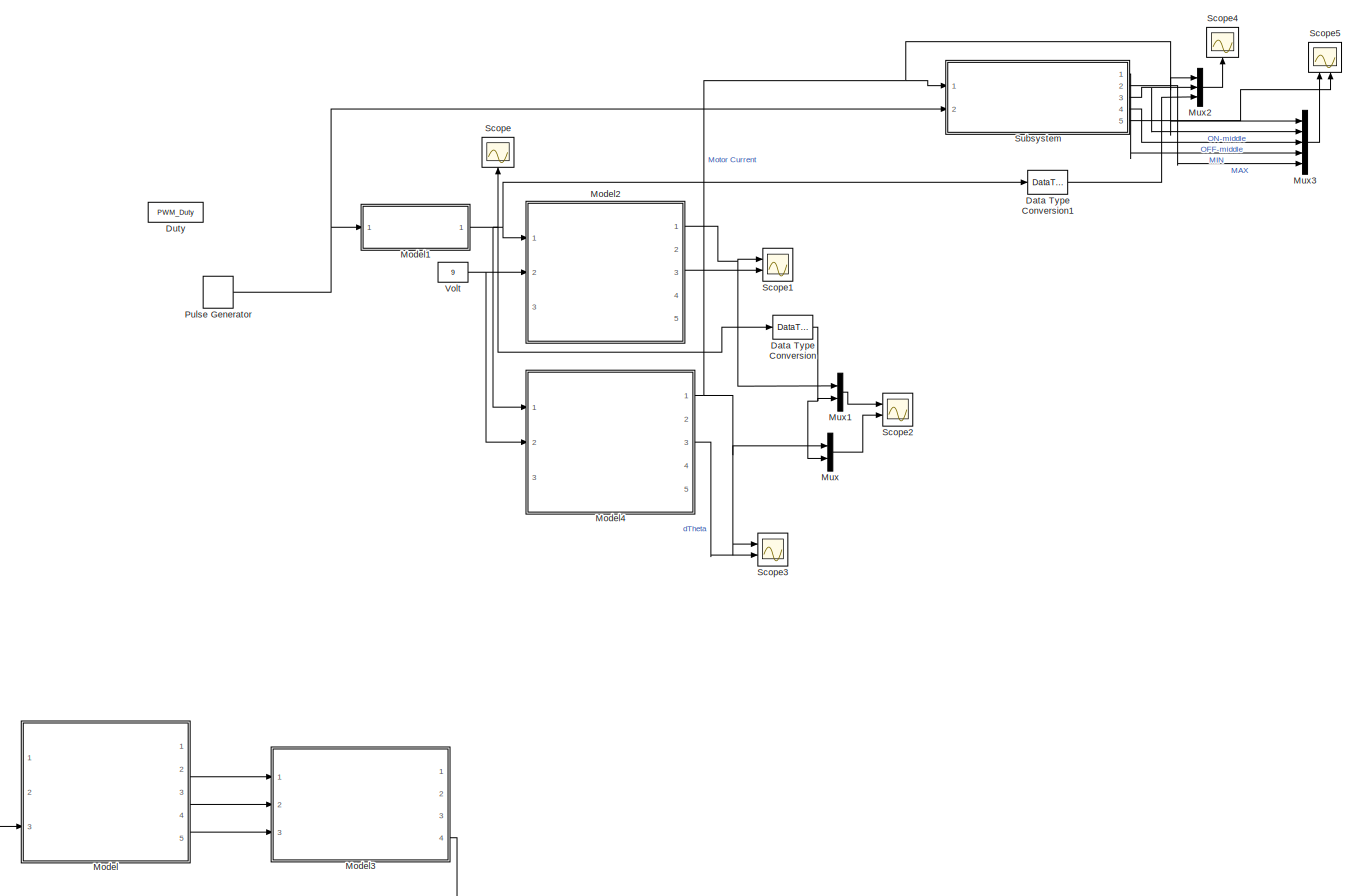
[diagram: root canvas - part 1/1, most of the canvas]
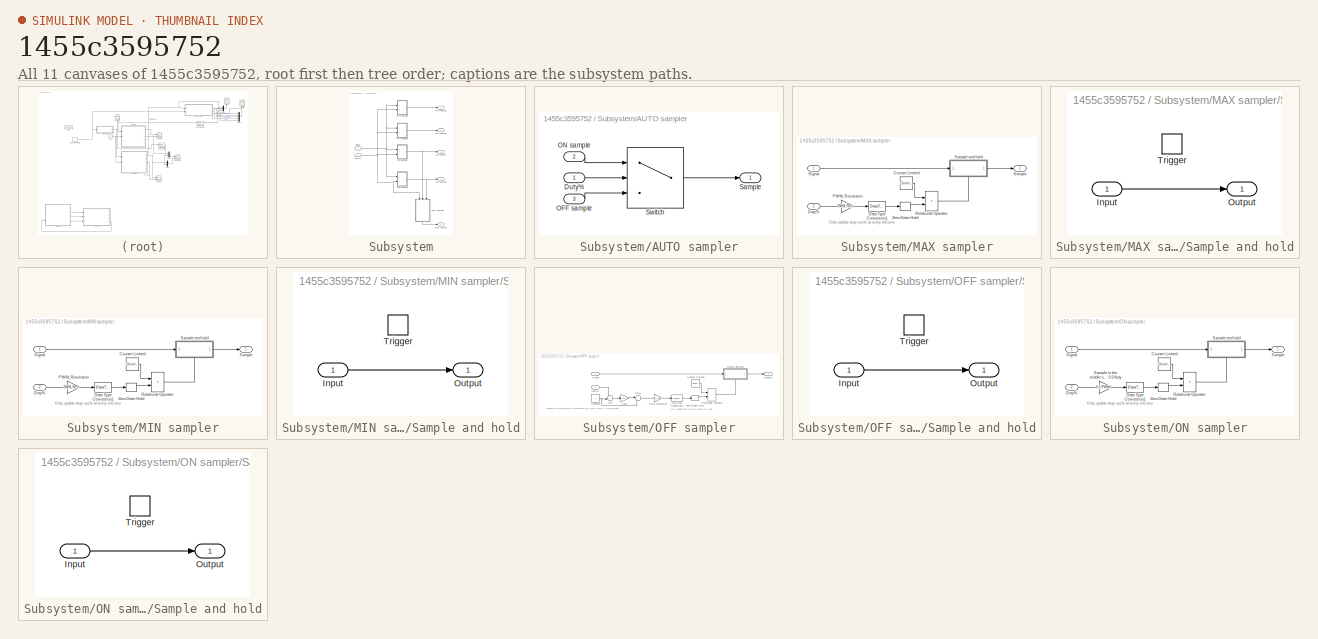
[diagram: thumbnail index - all 11 canvases of the model, root first then tree order]
MODEL slx_1455c3595752
KIND model
CONFIG AbsTol = auto
CONFIG EnableMultiTasking = off
CONFIG FixedStep = auto
CONFIG InitFcn = Parameters_Model\nParameters_Simulation\nParameters_Controller
CONFIG MaxStep = 1/(PWM_Resolution*PWM_Frequency)
CONFIG MinStep = auto
CONFIG PreLoadFcn = modelDir = fileparts(get_param(bdroot, 'FileName'));\ndisp(modelDir);\naddpath(fullfile(modelDir,'../Parameters'));\naddpath(fullfile(modelDir,'subsystems'));\n\nParameters_Model\nParameters_Simulation\nParameters_Controller
CONFIG RelTol = 1e-3
CONFIG SampleTimeConstraint = Unconstrained
CONFIG Solver = VariableStepAuto
CONFIG SolverName = VariableStepAuto
CONFIG StartTime = 0.0
CONFIG StopTime = 1
BLOCK [DataTypeConversion] Data Type Conversion
  RndMeth = Round
  SaturateOnIntegerOverflow = off
BLOCK [DataTypeConversion] Data Type Conversion1
  RndMeth = Round
  SaturateOnIntegerOverflow = off
BLOCK [Constant] Duty
  Value = PWM_Duty
BLOCK [ModelReference] Model
  Commented = on
  ModelNameDialog = DC_Motor_BrakeMode
  ModelReferenceVersion = 1.43
  Ports = [3, 5]
BLOCK [ModelReference] Model1
  ModelNameDialog = PWM
  ModelReferenceVersion = 1.22
  Ports = [1, 1]
BLOCK [ModelReference] Model2
  ModelNameDialog = DC_Motor_CoastMode
  ModelReferenceVersion = 1.46
  Ports = [3, 5]
BLOCK [ModelReference] Model3
  Commented = on
  ModelNameDialog = Gearbox
  ModelReferenceVersion = 1.9
  Ports = [3, 4]
BLOCK [ModelReference] Model4
  ModelNameDialog = DC_Motor_BrakeMode
  ModelReferenceVersion = 1.43
  Ports = [3, 5]
BLOCK [Mux] Mux
  DisplayOption = bar
  Inputs = 2
  Ports = [2, 1]
BLOCK [Mux] Mux1
  DisplayOption = bar
  Inputs = 2
  Ports = [2, 1]
BLOCK [Mux] Mux2
  DisplayOption = bar
  Inputs = 3
  Ports = [3, 1]
BLOCK [Mux] Mux3
  DisplayOption = bar
  Inputs = 5
  Ports = [5, 1]
BLOCK [DiscretePulseGenerator] Pulse Generator
  Amplitude = PWM_Duty
  Period = 1
  Ports = [0, 1]
  PulseType = Time based
  PulseWidth = 20
BLOCK [Scope] Scope
  Floating = off
  NumInputPorts = 1
  Ports = [1]
  ScopeSpecificationString = Simulink.scopes.TimeScopeBlockCfg('CurrentConfiguration', extmgr.ConfigurationSet(extmgr.Configuration('Core','General UI',true),extmgr.Configuration('Core','Source UI',true),extmgr.Configuration('Sources','WiredSimulink',true),extmgr.Configuration('Visuals','Time Domain',true,'SerializedDisplays',{struct('MinYLimReal','-0.125','MaxYLimReal','1.125','YLabelReal','','MinYLimMag','0.00000','MaxYLimM...<+1416ch>
BLOCK [Scope] Scope1
  Floating = off
  NumInputPorts = 2
  Ports = [2]
  ScopeSpecificationString = Simulink.scopes.TimeScopeBlockCfg('CurrentConfiguration', extmgr.ConfigurationSet(extmgr.Configuration('Core','General UI',true),extmgr.Configuration('Core','Source UI',true),extmgr.Configuration('Sources','WiredSimulink',true,'DataLoggingVariableName','ScopeData1'),extmgr.Configuration('Visuals','Time Domain',true,'SerializedDisplays',{struct('MinYLimReal','-0.118','MaxYLimReal','1.06196','YLabel...<+2147ch>
BLOCK [Scope] Scope2
  Floating = off
  NumInputPorts = 2
  Ports = [2]
  ScopeSpecificationString = Simulink.scopes.TimeScopeBlockCfg('CurrentConfiguration', extmgr.ConfigurationSet(extmgr.Configuration('Core','General UI',true),extmgr.Configuration('Core','Source UI',true),extmgr.Configuration('Sources','WiredSimulink',true,'DataLoggingVariableName','ScopeData1'),extmgr.Configuration('Visuals','Time Domain',true,'SerializedDisplays',{struct('MinYLimReal','-0.125','MaxYLimReal','1.125','YLabelRe...<+2525ch>
BLOCK [Scope] Scope3
  Floating = off
  NumInputPorts = 2
  Ports = [2]
  ScopeSpecificationString = Simulink.scopes.TimeScopeBlockCfg('CurrentConfiguration', extmgr.ConfigurationSet(extmgr.Configuration('Core','General UI',true),extmgr.Configuration('Core','Source UI',true),extmgr.Configuration('Sources','WiredSimulink',true,'DataLoggingVariableName','ScopeData2'),extmgr.Configuration('Visuals','Time Domain',true,'SerializedDisplays',{struct('MinYLimReal','-1.92365','MaxYLimReal','2.36002','YLab...<+2149ch>
BLOCK [Scope] Scope4
  Floating = off
  NumInputPorts = 1
  Ports = [1]
  ScopeSpecificationString = Simulink.scopes.TimeScopeBlockCfg('CurrentConfiguration', extmgr.ConfigurationSet(extmgr.Configuration('Core','General UI',true),extmgr.Configuration('Core','Source UI',true),extmgr.Configuration('Sources','WiredSimulink',true,'DataLoggingVariableName','ScopeData1'),extmgr.Configuration('Visuals','Time Domain',true,'SerializedDisplays',{struct('MinYLimReal','-0.21012','MaxYLimReal','1.89105','YLab...<+1509ch>
BLOCK [Scope] Scope5
  Floating = off
  NumInputPorts = 2
  Ports = [2]
  ScopeSpecificationString = Simulink.scopes.TimeScopeBlockCfg('CurrentConfiguration', extmgr.ConfigurationSet(extmgr.Configuration('Core','General UI',true),extmgr.Configuration('Core','Source UI',true),extmgr.Configuration('Sources','WiredSimulink',true,'DataLoggingVariableName','ScopeData2'),extmgr.Configuration('Visuals','Time Domain',true,'SerializedDisplays',{struct('MinYLimReal','-0.24143','MaxYLimReal','2.17285','YLab...<+2101ch>
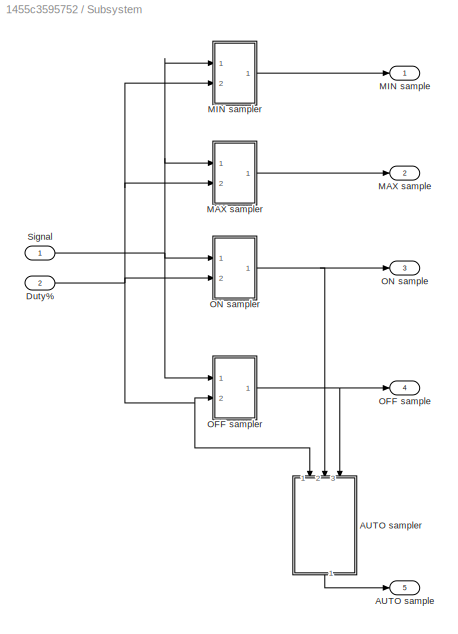
BLOCK [SubSystem] Subsystem
  Ports = [2, 5]
  RequestExecContextInheritance = off
BLOCK [Outport] Subsystem/AUTO sample
  IconDisplay = Port number
  Port = 5
  VectorParamsAs1DForOutWhenUnconnected = off
BLOCK [SubSystem] Subsystem/AUTO sampler
  Ports = [3, 1]
  RequestExecContextInheritance = off
BLOCK [Inport] Subsystem/AUTO sampler/Duty%
  IconDisplay = Port number
  OutDataTypeStr = double
BLOCK [Inport] Subsystem/AUTO sampler/OFF sample
  IconDisplay = Port number
  Port = 3
BLOCK [Inport] Subsystem/AUTO sampler/ON sample
  IconDisplay = Port number
  Port = 2
BLOCK [Outport] Subsystem/AUTO sampler/Sample
  IconDisplay = Port number
  VectorParamsAs1DForOutWhenUnconnected = off
BLOCK [Switch] Subsystem/AUTO sampler/Switch
  InputSameDT = off
  SaturateOnIntegerOverflow = off
  Threshold = 0.5
BLOCK [Inport] Subsystem/Duty%
  IconDisplay = Port number
  OutDataTypeStr = double
  Port = 2
BLOCK [Outport] Subsystem/MAX sample
  IconDisplay = Port number
  Port = 2
  VectorParamsAs1DForOutWhenUnconnected = off
BLOCK [SubSystem] Subsystem/MAX sampler
  Ports = [2, 1]
  RequestExecContextInheritance = off
BLOCK [Reference] Subsystem/MAX sampler/Counter Limited  REF=simulink/Sources/Counter
Limited
  Ports = [0, 1]
  SourceBlock = simulink/Sources/Counter\nLimited
  SourceProductBaseCode = SL
  SourceProductName = Simulink
  SourceType = Counter Limited
BLOCK [DataTypeConversion] Subsystem/MAX sampler/Data Type Conversion1
  RndMeth = Round
  SaturateOnIntegerOverflow = off
BLOCK [Inport] Subsystem/MAX sampler/Duty%
  IconDisplay = Port number
  OutDataTypeStr = double
  Port = 2
BLOCK [Gain] Subsystem/MAX sampler/PWM_Resolution
  Gain = PWM_Resolution
  OutDataTypeStr = Inherit: Inherit via internal rule
  ParamDataTypeStr = Inherit: Inherit via internal rule
  SaturateOnIntegerOverflow = off
BLOCK [RelationalOperator] Subsystem/MAX sampler/Relational Operator
  InputSameDT = off
  Operator = <
  OutDataTypeStr = boolean
  Ports = [2, 1]
  RndMeth = Simplest
BLOCK [Outport] Subsystem/MAX sampler/Sample
  IconDisplay = Port number
  VectorParamsAs1DForOutWhenUnconnected = off
BLOCK [SubSystem] Subsystem/MAX sampler/Sample and hold
  Ports = [1, 1, 0, 1]
  RequestExecContextInheritance = off
BLOCK [Inport] Subsystem/MAX sampler/Sample and hold/Input
  IconDisplay = Port number
BLOCK [Outport] Subsystem/MAX sampler/Sample and hold/Output
  IconDisplay = Port number
  VectorParamsAs1DForOutWhenUnconnected = off
BLOCK [TriggerPort] Subsystem/MAX sampler/Sample and hold/Trigger
  PortDimensions = 1
  Ports = []
  StatesWhenEnabling = held
  TriggerType = falling
  VariantControl = Variant
BLOCK [Inport] Subsystem/MAX sampler/Signal
  IconDisplay = Port number
BLOCK [ZeroOrderHold] Subsystem/MAX sampler/Zero-Order Hold
  SampleTime = 1/PWM_Frequency
BLOCK [Outport] Subsystem/MIN sample
  IconDisplay = Port number
  VectorParamsAs1DForOutWhenUnconnected = off
BLOCK [SubSystem] Subsystem/MIN sampler
  Ports = [2, 1]
  RequestExecContextInheritance = off
BLOCK [Reference] Subsystem/MIN sampler/Counter Limited  REF=simulink/Sources/Counter
Limited
  Ports = [0, 1]
  SourceBlock = simulink/Sources/Counter\nLimited
  SourceProductBaseCode = SL
  SourceProductName = Simulink
  SourceType = Counter Limited
BLOCK [DataTypeConversion] Subsystem/MIN sampler/Data Type Conversion1
  RndMeth = Round
  SaturateOnIntegerOverflow = off
BLOCK [Inport] Subsystem/MIN sampler/Duty%
  IconDisplay = Port number
  OutDataTypeStr = double
  Port = 2
BLOCK [Gain] Subsystem/MIN sampler/PWM_Resolution
  Gain = PWM_Resolution
  OutDataTypeStr = Inherit: Inherit via internal rule
  ParamDataTypeStr = Inherit: Inherit via internal rule
  SaturateOnIntegerOverflow = off
BLOCK [RelationalOperator] Subsystem/MIN sampler/Relational Operator
  InputSameDT = off
  Operator = <
  OutDataTypeStr = boolean
  Ports = [2, 1]
  RndMeth = Simplest
BLOCK [Outport] Subsystem/MIN sampler/Sample
  IconDisplay = Port number
  VectorParamsAs1DForOutWhenUnconnected = off
BLOCK [SubSystem] Subsystem/MIN sampler/Sample and hold
  Ports = [1, 1, 0, 1]
  RequestExecContextInheritance = off
BLOCK [Inport] Subsystem/MIN sampler/Sample and hold/Input
  IconDisplay = Port number
BLOCK [Outport] Subsystem/MIN sampler/Sample and hold/Output
  IconDisplay = Port number
  VectorParamsAs1DForOutWhenUnconnected = off
BLOCK [TriggerPort] Subsystem/MIN sampler/Sample and hold/Trigger
  PortDimensions = 1
  Ports = []
  StatesWhenEnabling = held
  VariantControl = Variant
BLOCK [Inport] Subsystem/MIN sampler/Signal
  IconDisplay = Port number
BLOCK [ZeroOrderHold] Subsystem/MIN sampler/Zero-Order Hold
  SampleTime = 1/PWM_Frequency
BLOCK [Outport] Subsystem/OFF sample
  IconDisplay = Port number
  Port = 4
  VectorParamsAs1DForOutWhenUnconnected = off
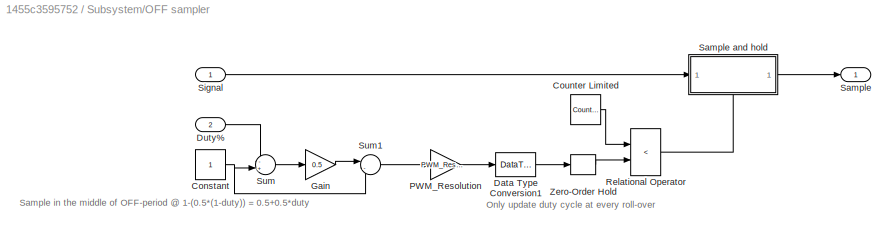
BLOCK [SubSystem] Subsystem/OFF sampler
  Ports = [2, 1]
  RequestExecContextInheritance = off
BLOCK [Constant] Subsystem/OFF sampler/Constant
BLOCK [Reference] Subsystem/OFF sampler/Counter Limited  REF=simulink/Sources/Counter
Limited
  Ports = [0, 1]
  SourceBlock = simulink/Sources/Counter\nLimited
  SourceProductBaseCode = SL
  SourceProductName = Simulink
  SourceType = Counter Limited
BLOCK [DataTypeConversion] Subsystem/OFF sampler/Data Type Conversion1
  RndMeth = Round
  SaturateOnIntegerOverflow = off
BLOCK [Inport] Subsystem/OFF sampler/Duty%
  IconDisplay = Port number
  OutDataTypeStr = double
  Port = 2
BLOCK [Gain] Subsystem/OFF sampler/Gain
  Gain = 0.5
  OutDataTypeStr = Inherit: Inherit via internal rule
  ParamDataTypeStr = Inherit: Inherit via internal rule
  SaturateOnIntegerOverflow = off
BLOCK [Gain] Subsystem/OFF sampler/PWM_Resolution
  Gain = PWM_Resolution
  OutDataTypeStr = Inherit: Inherit via internal rule
  ParamDataTypeStr = Inherit: Inherit via internal rule
  SaturateOnIntegerOverflow = off
BLOCK [RelationalOperator] Subsystem/OFF sampler/Relational Operator
  InputSameDT = off
  Operator = <
  OutDataTypeStr = boolean
  Ports = [2, 1]
  RndMeth = Simplest
BLOCK [Outport] Subsystem/OFF sampler/Sample
  IconDisplay = Port number
  VectorParamsAs1DForOutWhenUnconnected = off
BLOCK [SubSystem] Subsystem/OFF sampler/Sample and hold
  Ports = [1, 1, 0, 1]
  RequestExecContextInheritance = off
BLOCK [Inport] Subsystem/OFF sampler/Sample and hold/Input
  IconDisplay = Port number
BLOCK [Outport] Subsystem/OFF sampler/Sample and hold/Output
  IconDisplay = Port number
  VectorParamsAs1DForOutWhenUnconnected = off
BLOCK [TriggerPort] Subsystem/OFF sampler/Sample and hold/Trigger
  PortDimensions = 1
  Ports = []
  StatesWhenEnabling = held
  TriggerType = falling
  VariantControl = Variant
BLOCK [Inport] Subsystem/OFF sampler/Signal
  IconDisplay = Port number
BLOCK [Sum] Subsystem/OFF sampler/Sum
  IconShape = round
  InputSameDT = off
  Inputs = -+|
  OutDataTypeStr = Inherit: Inherit via internal rule
  Ports = [2, 1]
  SaturateOnIntegerOverflow = off
BLOCK [Sum] Subsystem/OFF sampler/Sum1
  IconShape = round
  InputSameDT = off
  Inputs = |-+
  OutDataTypeStr = Inherit: Inherit via internal rule
  Ports = [2, 1]
  SaturateOnIntegerOverflow = off
BLOCK [ZeroOrderHold] Subsystem/OFF sampler/Zero-Order Hold
  SampleTime = 1/PWM_Frequency
BLOCK [Outport] Subsystem/ON sample
  IconDisplay = Port number
  Port = 3
  VectorParamsAs1DForOutWhenUnconnected = off
BLOCK [SubSystem] Subsystem/ON sampler
  Ports = [2, 1]
  RequestExecContextInheritance = off
BLOCK [Reference] Subsystem/ON sampler/Counter Limited  REF=simulink/Sources/Counter
Limited
  Ports = [0, 1]
  SourceBlock = simulink/Sources/Counter\nLimited
  SourceProductBaseCode = SL
  SourceProductName = Simulink
  SourceType = Counter Limited
BLOCK [DataTypeConversion] Subsystem/ON sampler/Data Type Conversion1
  RndMeth = Round
  SaturateOnIntegerOverflow = off
BLOCK [Inport] Subsystem/ON sampler/Duty%
  IconDisplay = Port number
  OutDataTypeStr = double
  Port = 2
BLOCK [RelationalOperator] Subsystem/ON sampler/Relational Operator
  InputSameDT = off
  Operator = <
  OutDataTypeStr = boolean
  Ports = [2, 1]
  RndMeth = Simplest
BLOCK [Outport] Subsystem/ON sampler/Sample
  IconDisplay = Port number
  VectorParamsAs1DForOutWhenUnconnected = off
BLOCK [SubSystem] Subsystem/ON sampler/Sample and hold
  Ports = [1, 1, 0, 1]
  RequestExecContextInheritance = off
BLOCK [Inport] Subsystem/ON sampler/Sample and hold/Input
  IconDisplay = Port number
BLOCK [Outport] Subsystem/ON sampler/Sample and hold/Output
  IconDisplay = Port number
  VectorParamsAs1DForOutWhenUnconnected = off
BLOCK [TriggerPort] Subsystem/ON sampler/Sample and hold/Trigger
  PortDimensions = 1
  Ports = []
  StatesWhenEnabling = held
  TriggerType = falling
  VariantControl = Variant
BLOCK [Gain] Subsystem/ON sampler/Sample in the middle of ON-period @ 0.5*duty
  Gain = 0.5*PWM_Resolution
  OutDataTypeStr = Inherit: Inherit via internal rule
  ParamDataTypeStr = Inherit: Inherit via internal rule
  SaturateOnIntegerOverflow = off
BLOCK [Inport] Subsystem/ON sampler/Signal
  IconDisplay = Port number
BLOCK [ZeroOrderHold] Subsystem/ON sampler/Zero-Order Hold
  SampleTime = 1/PWM_Frequency
BLOCK [Inport] Subsystem/Signal
  IconDisplay = Port number
BLOCK [Constant] Volt
  Value = 9
ANNOTATION Subsystem/MAX sampler: Only update duty cycle at every roll-over
ANNOTATION Subsystem/MIN sampler: Only update duty cycle at every roll-over
ANNOTATION Subsystem/OFF sampler: Only update duty cycle at every roll-over
ANNOTATION Subsystem/OFF sampler: Sample in the middle of OFF-period @ 1-(0.5*(1-duty)) = 0.5+0.5*duty
ANNOTATION Subsystem/ON sampler: Only update duty cycle at every roll-over
LINE Data Type Conversion1:1 -> Mux2:3
NET Data Type Conversion:1 -> Mux1:2, Mux:2
NET Model1:1 -> Data Type Conversion1:1, Data Type Conversion:1, Model2:1, Model4:1, Scope:1
NET Model2:1 -> Mux1:1, Scope1:1
LINE Model2:3 -> Scope1:2
LINE Model3:4 -> Model:3
NET Model4:1 -> Mux2:1, Mux3:1, Mux:1, Scope3:1, Subsystem:1
LINE Model4:3 -> Scope3:2
LINE Model:2 -> Model3:1
LINE Model:3 -> Model3:2
LINE Model:4 -> Model3:3
LINE Mux1:1 -> Scope2:1
LINE Mux2:1 -> Scope4:1
LINE Mux3:1 -> Scope5:1
LINE Mux:1 -> Scope2:2
NET Pulse Generator:1 -> Model1:1, Subsystem:2
LINE Subsystem/AUTO sampler/Duty%:1 -> Subsystem/AUTO sampler/Switch:2
LINE Subsystem/AUTO sampler/OFF sample:1 -> Subsystem/AUTO sampler/Switch:3
LINE Subsystem/AUTO sampler/ON sample:1 -> Subsystem/AUTO sampler/Switch:1
LINE Subsystem/AUTO sampler/Switch:1 -> Subsystem/AUTO sampler/Sample:1
LINE Subsystem/AUTO sampler:1 -> Subsystem/AUTO sample:1
NET Subsystem/Duty%:1 -> Subsystem/AUTO sampler:1, Subsystem/MAX sampler:2, Subsystem/MIN sampler:2, Subsystem/OFF sampler:2, Subsystem/ON sampler:2
LINE Subsystem/MAX sampler/Counter Limited:1 -> Subsystem/MAX sampler/Relational Operator:1
LINE Subsystem/MAX sampler/Data Type Conversion1:1 -> Subsystem/MAX sampler/Zero-Order Hold:1
LINE Subsystem/MAX sampler/Duty%:1 -> Subsystem/MAX sampler/PWM_Resolution:1
LINE Subsystem/MAX sampler/PWM_Resolution:1 -> Subsystem/MAX sampler/Data Type Conversion1:1
LINE Subsystem/MAX sampler/Relational Operator:1 -> Subsystem/MAX sampler/Sample and hold:trigger
LINE Subsystem/MAX sampler/Sample and hold/Input:1 -> Subsystem/MAX sampler/Sample and hold/Output:1
LINE Subsystem/MAX sampler/Sample and hold:1 -> Subsystem/MAX sampler/Sample:1
LINE Subsystem/MAX sampler/Signal:1 -> Subsystem/MAX sampler/Sample and hold:1
LINE Subsystem/MAX sampler/Zero-Order Hold:1 -> Subsystem/MAX sampler/Relational Operator:2
LINE Subsystem/MAX sampler:1 -> Subsystem/MAX sample:1
LINE Subsystem/MIN sampler/Counter Limited:1 -> Subsystem/MIN sampler/Relational Operator:1
LINE Subsystem/MIN sampler/Data Type Conversion1:1 -> Subsystem/MIN sampler/Zero-Order Hold:1
LINE Subsystem/MIN sampler/Duty%:1 -> Subsystem/MIN sampler/PWM_Resolution:1
LINE Subsystem/MIN sampler/PWM_Resolution:1 -> Subsystem/MIN sampler/Data Type Conversion1:1
LINE Subsystem/MIN sampler/Relational Operator:1 -> Subsystem/MIN sampler/Sample and hold:trigger
LINE Subsystem/MIN sampler/Sample and hold/Input:1 -> Subsystem/MIN sampler/Sample and hold/Output:1
LINE Subsystem/MIN sampler/Sample and hold:1 -> Subsystem/MIN sampler/Sample:1
LINE Subsystem/MIN sampler/Signal:1 -> Subsystem/MIN sampler/Sample and hold:1
LINE Subsystem/MIN sampler/Zero-Order Hold:1 -> Subsystem/MIN sampler/Relational Operator:2
LINE Subsystem/MIN sampler:1 -> Subsystem/MIN sample:1
NET Subsystem/OFF sampler/Constant:1 -> Subsystem/OFF sampler/Sum1:2, Subsystem/OFF sampler/Sum:2
LINE Subsystem/OFF sampler/Counter Limited:1 -> Subsystem/OFF sampler/Relational Operator:1
LINE Subsystem/OFF sampler/Data Type Conversion1:1 -> Subsystem/OFF sampler/Zero-Order Hold:1
LINE Subsystem/OFF sampler/Duty%:1 -> Subsystem/OFF sampler/Sum:1
LINE Subsystem/OFF sampler/Gain:1 -> Subsystem/OFF sampler/Sum1:1
LINE Subsystem/OFF sampler/PWM_Resolution:1 -> Subsystem/OFF sampler/Data Type Conversion1:1
LINE Subsystem/OFF sampler/Relational Operator:1 -> Subsystem/OFF sampler/Sample and hold:trigger
LINE Subsystem/OFF sampler/Sample and hold/Input:1 -> Subsystem/OFF sampler/Sample and hold/Output:1
LINE Subsystem/OFF sampler/Sample and hold:1 -> Subsystem/OFF sampler/Sample:1
LINE Subsystem/OFF sampler/Signal:1 -> Subsystem/OFF sampler/Sample and hold:1
LINE Subsystem/OFF sampler/Sum1:1 -> Subsystem/OFF sampler/PWM_Resolution:1
LINE Subsystem/OFF sampler/Sum:1 -> Subsystem/OFF sampler/Gain:1
LINE Subsystem/OFF sampler/Zero-Order Hold:1 -> Subsystem/OFF sampler/Relational Operator:2
NET Subsystem/OFF sampler:1 -> Subsystem/AUTO sampler:3, Subsystem/OFF sample:1
LINE Subsystem/ON sampler/Counter Limited:1 -> Subsystem/ON sampler/Relational Operator:1
LINE Subsystem/ON sampler/Data Type Conversion1:1 -> Subsystem/ON sampler/Zero-Order Hold:1
LINE Subsystem/ON sampler/Duty%:1 -> Subsystem/ON sampler/Sample in the middle of ON-period @ 0.5*duty:1
LINE Subsystem/ON sampler/Relational Operator:1 -> Subsystem/ON sampler/Sample and hold:trigger
LINE Subsystem/ON sampler/Sample and hold/Input:1 -> Subsystem/ON sampler/Sample and hold/Output:1
LINE Subsystem/ON sampler/Sample and hold:1 -> Subsystem/ON sampler/Sample:1
LINE Subsystem/ON sampler/Sample in the middle of ON-period @ 0.5*duty:1 -> Subsystem/ON sampler/Data Type Conversion1:1
LINE Subsystem/ON sampler/Signal:1 -> Subsystem/ON sampler/Sample and hold:1
LINE Subsystem/ON sampler/Zero-Order Hold:1 -> Subsystem/ON sampler/Relational Operator:2
NET Subsystem/ON sampler:1 -> Subsystem/AUTO sampler:2, Subsystem/ON sample:1
NET Subsystem/Signal:1 -> Subsystem/MAX sampler:1, Subsystem/MIN sampler:1, Subsystem/OFF sampler:1, Subsystem/ON sampler:1
LINE Subsystem:1 -> Mux3:4
LINE Subsystem:2 -> Mux3:5
NET Subsystem:3 -> Mux2:2, Mux3:2
LINE Subsystem:4 -> Mux3:3
LINE Subsystem:5 -> Scope5:2
NET Volt:1 -> Model2:2, Model4:2
note: NET lines group one-source signal fan-out (src -> all destinations, sorted); 1:1 wires keep LINE
